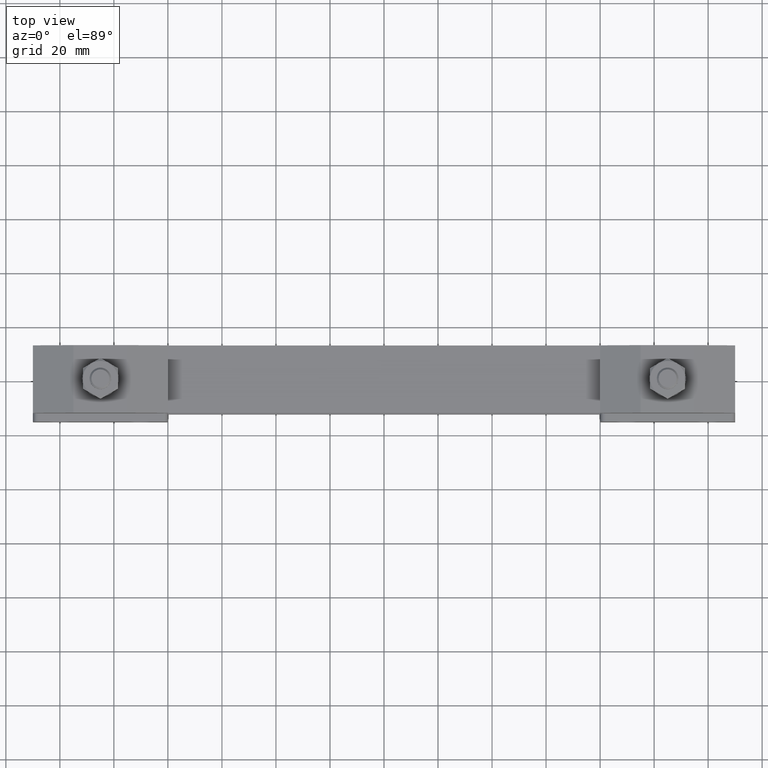
[diagram: clean part render]
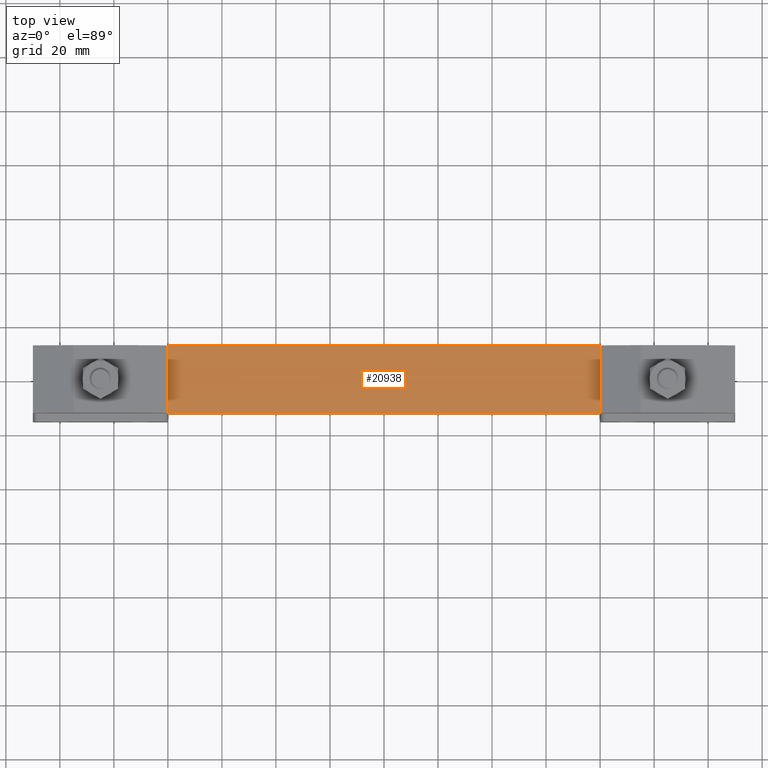
[diagram: same view with one face highlighted and labeled with its STEP entity id]
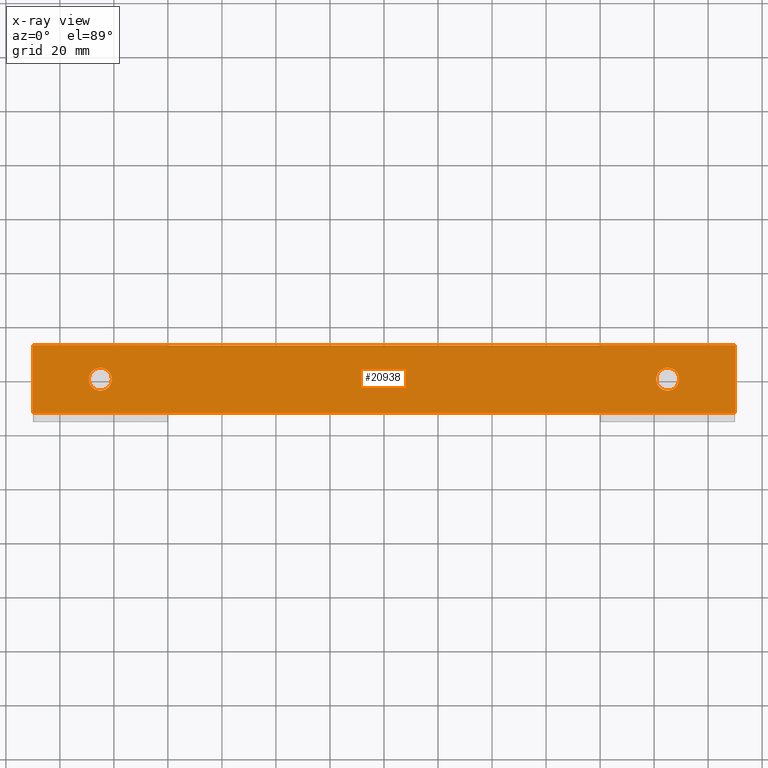
[diagram: x-ray of the same camera — body ghosted, the highlighted face saturated]
A machine part, top view. The second image highlights one B-rep face of the part: STEP entity #20938.
The next image is the same camera in x-ray: the body ghosted, the highlighted face saturated — about 0% of this face is hidden behind the body in this view.
In plain terms, the highlighted planar face has unit normal (0, 0, 1).
Its self-contained STEP definition (entity closure, byte-faithful):
#159 = CARTESIAN_POINT ( 'NONE',  ( -130.0000000000000000, -12.50000000000000000, 32.00000000000000000 ) ) ;
#310 = DIRECTION ( 'NONE',  ( -1.000000000000000000, 0.0000000000000000000, 0.0000000000000000000 ) ) ;
#668 = CARTESIAN_POINT ( 'NONE',  ( -130.0000000000000000, 12.50000000000000000, 32.00000000000000000 ) ) ;
#1647 = ORIENTED_EDGE ( 'NONE', *, *, #10921, .T. ) ;
#1666 = LINE ( 'NONE', #159, #11956 ) ;
#1838 = EDGE_LOOP ( 'NONE', ( #10698, #20868 ) ) ;
#2305 = CARTESIAN_POINT ( 'NONE',  ( -130.0000000000000000, -12.50000000000000000, 32.00000000000000000 ) ) ;
#2697 = LINE ( 'NONE', #14247, #4249 ) ;
#2919 = VECTOR ( 'NONE', #6558, 1000.000000000000000 ) ;
#2928 = AXIS2_PLACEMENT_3D ( 'NONE', #19440, #11579, #8117 ) ;
#3227 = CARTESIAN_POINT ( 'NONE',  ( 100.7499999999999900, 2.107580603094574600E-014, 32.00000000000000000 ) ) ;
#3515 = DIRECTION ( 'NONE',  ( 1.000000000000000000, 0.0000000000000000000, 0.0000000000000000000 ) ) ;
#3518 = CARTESIAN_POINT ( 'NONE',  ( -109.2500000000000000, -4.640927399324200200E-015, 32.00000000000000000 ) ) ;
#3739 = CARTESIAN_POINT ( 'NONE',  ( -105.0000000000000000, -4.640927399324200200E-015, 32.00000000000000000 ) ) ;
#3795 = CIRCLE ( 'NONE', #18650, 4.250000000000003600 ) ;
#4249 = VECTOR ( 'NONE', #8909, 1000.000000000000000 ) ;
#4327 = DIRECTION ( 'NONE',  ( -1.000000000000000000, 0.0000000000000000000, 0.0000000000000000000 ) ) ;
#4697 = CARTESIAN_POINT ( 'NONE',  ( -130.0000000000000000, 12.50000000000000000, 32.00000000000000000 ) ) ;
#4972 = VERTEX_POINT ( 'NONE', #3227 ) ;
#5361 = EDGE_CURVE ( 'NONE', #9311, #15874, #3795, .T. ) ;
#5458 = PLANE ( 'NONE',  #9006 ) ;
#5459 = FACE_BOUND ( 'NONE', #6149, .T. ) ;
#5602 = DIRECTION ( 'NONE',  ( 0.0000000000000000000, 0.0000000000000000000, 1.000000000000000000 ) ) ;
#6149 = EDGE_LOOP ( 'NONE', ( #11267, #12879 ) ) ;
#6558 = DIRECTION ( 'NONE',  ( -1.000000000000000000, 6.004812032227410000E-017, 0.0000000000000000000 ) ) ;
#7089 = CARTESIAN_POINT ( 'NONE',  ( 130.0000000000000000, 12.50000000000000000, 32.00000000000000000 ) ) ;
#7106 = CARTESIAN_POINT ( 'NONE',  ( -100.7499999999999900, -4.120452509686575800E-015, 32.00000000000000000 ) ) ;
#7868 = CIRCLE ( 'NONE', #20533, 4.250000000000003600 ) ;
#8117 = DIRECTION ( 'NONE',  ( -1.000000000000000000, 0.0000000000000000000, 0.0000000000000000000 ) ) ;
#8909 = DIRECTION ( 'NONE',  ( 0.0000000000000000000, -1.000000000000000000, 0.0000000000000000000 ) ) ;
#9006 = AXIS2_PLACEMENT_3D ( 'NONE', #2305, #5602, #13855 ) ;
#9279 = VERTEX_POINT ( 'NONE', #18273 ) ;
#9311 = VERTEX_POINT ( 'NONE', #3518 ) ;
#9720 = EDGE_CURVE ( 'NONE', #4972, #9279, #19529, .T. ) ;
#9780 = FACE_BOUND ( 'NONE', #1838, .T. ) ;
#10097 = EDGE_CURVE ( 'NONE', #9279, #4972, #16976, .T. ) ;
#10431 = ORIENTED_EDGE ( 'NONE', *, *, #19592, .T. ) ;
#10527 = DIRECTION ( 'NONE',  ( 0.0000000000000000000, 0.0000000000000000000, -1.000000000000000000 ) ) ;
#10698 = ORIENTED_EDGE ( 'NONE', *, *, #5361, .T. ) ;
#10921 = EDGE_CURVE ( 'NONE', #16250, #19750, #16438, .T. ) ;
#11136 = CARTESIAN_POINT ( 'NONE',  ( -130.0000000000000000, -12.50000000000000000, 32.00000000000000000 ) ) ;
#11267 = ORIENTED_EDGE ( 'NONE', *, *, #9720, .T. ) ;
#11579 = DIRECTION ( 'NONE',  ( 0.0000000000000000000, 0.0000000000000000000, -1.000000000000000000 ) ) ;
#11956 = VECTOR ( 'NONE', #3515, 1000.000000000000000 ) ;
#12040 = EDGE_CURVE ( 'NONE', #15874, #9311, #7868, .T. ) ;
#12828 = VERTEX_POINT ( 'NONE', #11136 ) ;
#12879 = ORIENTED_EDGE ( 'NONE', *, *, #10097, .T. ) ;
#13352 = VECTOR ( 'NONE', #13683, 1000.000000000000000 ) ;
#13672 = EDGE_LOOP ( 'NONE', ( #14597, #10431, #1647, #15173 ) ) ;
#13683 = DIRECTION ( 'NONE',  ( 0.0000000000000000000, 1.000000000000000000, 0.0000000000000000000 ) ) ;
#13734 = EDGE_CURVE ( 'NONE', #19371, #12828, #2697, .T. ) ;
#13855 = DIRECTION ( 'NONE',  ( 1.000000000000000000, 0.0000000000000000000, 0.0000000000000000000 ) ) ;
#13920 = DIRECTION ( 'NONE',  ( -1.000000000000000000, 0.0000000000000000000, 0.0000000000000000000 ) ) ;
#14247 = CARTESIAN_POINT ( 'NONE',  ( -130.0000000000000000, 12.50000000000000000, 32.00000000000000000 ) ) ;
#14597 = ORIENTED_EDGE ( 'NONE', *, *, #13734, .T. ) ;
#15028 = CARTESIAN_POINT ( 'NONE',  ( 130.0000000000000000, -12.50000000000000000, 32.00000000000000000 ) ) ;
#15113 = EDGE_CURVE ( 'NONE', #19750, #19371, #20366, .T. ) ;
#15173 = ORIENTED_EDGE ( 'NONE', *, *, #15113, .T. ) ;
#15874 = VERTEX_POINT ( 'NONE', #7106 ) ;
#16009 = AXIS2_PLACEMENT_3D ( 'NONE', #19097, #17507, #4327 ) ;
#16250 = VERTEX_POINT ( 'NONE', #15028 ) ;
#16438 = LINE ( 'NONE', #16768, #13352 ) ;
#16768 = CARTESIAN_POINT ( 'NONE',  ( 130.0000000000000000, 12.50000000000000000, 32.00000000000000000 ) ) ;
#16976 = CIRCLE ( 'NONE', #16009, 4.250000000000003600 ) ;
#17277 = FACE_OUTER_BOUND ( 'NONE', #13672, .T. ) ;
#17507 = DIRECTION ( 'NONE',  ( 0.0000000000000000000, 0.0000000000000000000, -1.000000000000000000 ) ) ;
#18214 = DIRECTION ( 'NONE',  ( 0.0000000000000000000, 0.0000000000000000000, -1.000000000000000000 ) ) ;
#18273 = CARTESIAN_POINT ( 'NONE',  ( 109.2500000000000000, 2.159628092058337000E-014, 32.00000000000000000 ) ) ;
#18650 = AXIS2_PLACEMENT_3D ( 'NONE', #18978, #10527, #13920 ) ;
#18978 = CARTESIAN_POINT ( 'NONE',  ( -105.0000000000000000, -4.640927399324200200E-015, 32.00000000000000000 ) ) ;
#19097 = CARTESIAN_POINT ( 'NONE',  ( 105.0000000000000000, 2.107580603094574600E-014, 32.00000000000000000 ) ) ;
#19371 = VERTEX_POINT ( 'NONE', #668 ) ;
#19440 = CARTESIAN_POINT ( 'NONE',  ( 105.0000000000000000, 2.107580603094574600E-014, 32.00000000000000000 ) ) ;
#19529 = CIRCLE ( 'NONE', #2928, 4.250000000000003600 ) ;
#19592 = EDGE_CURVE ( 'NONE', #12828, #16250, #1666, .T. ) ;
#19750 = VERTEX_POINT ( 'NONE', #7089 ) ;
#20366 = LINE ( 'NONE', #4697, #2919 ) ;
#20533 = AXIS2_PLACEMENT_3D ( 'NONE', #3739, #18214, #310 ) ;
#20868 = ORIENTED_EDGE ( 'NONE', *, *, #12040, .T. ) ;
#20938 = ADVANCED_FACE ( 'NONE', ( #9780, #5459, #17277 ), #5458, .T. ) ;